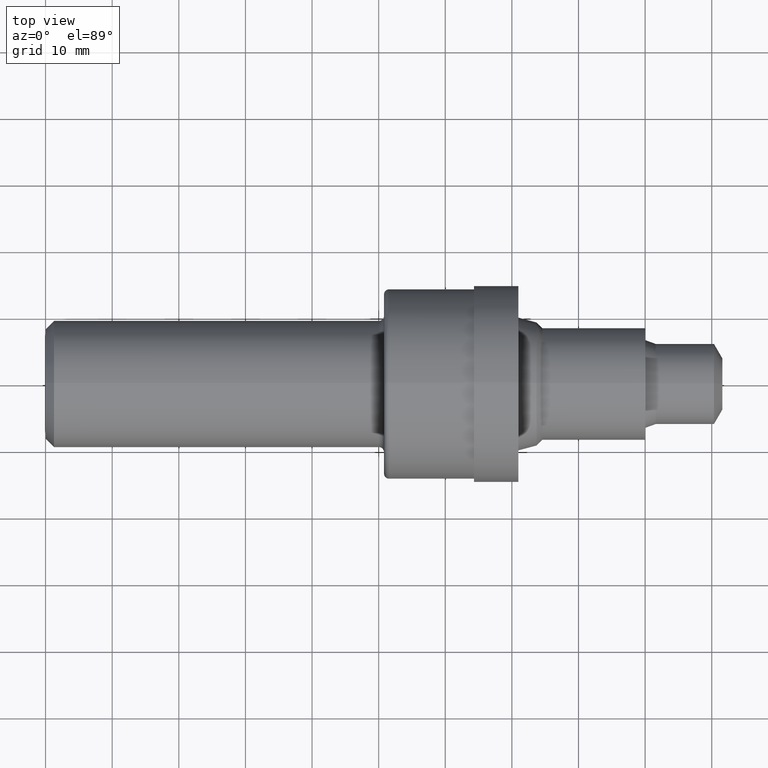
[diagram: clean part render]
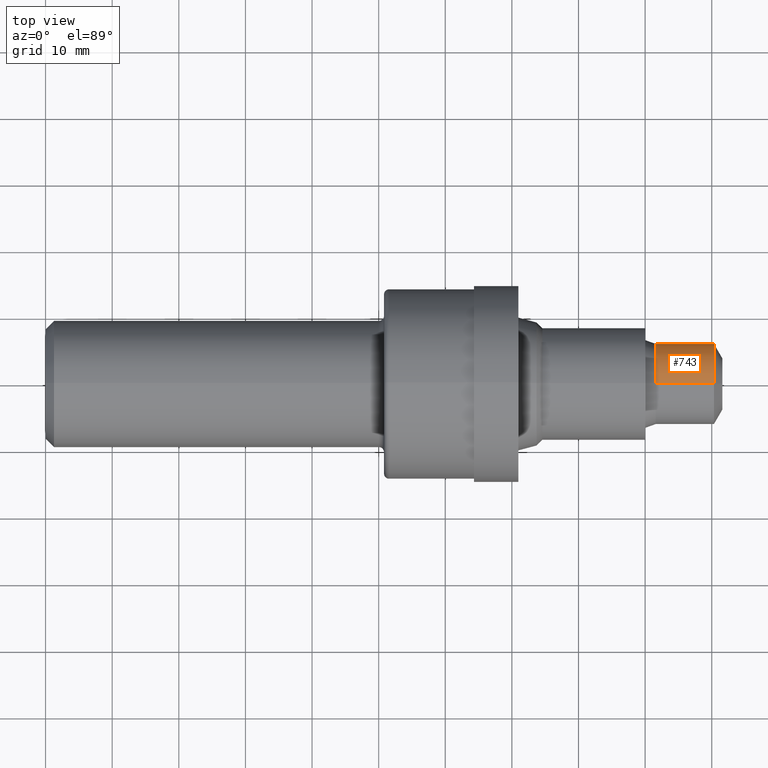
[diagram: same view with one face highlighted and labeled with its STEP entity id]
A machine part, top view. The second image highlights one B-rep face of the part: STEP entity #743.
In plain terms, the highlighted cylindrical surface (partial cylindrical patch) has radius 6.0427 mm, axis along (-1, -0, -0).
Its self-contained STEP definition (entity closure, byte-faithful):
#12 = DIRECTION ( 'NONE',  ( -1.000000000000000000, -0.0000000000000000000, -0.0000000000000000000 ) ) ;
#19 = CYLINDRICAL_SURFACE ( 'NONE', #780, 0.2379000000000000004 ) ;
#37 = CIRCLE ( 'NONE', #235, 0.2379000000000000004 ) ;
#84 = ORIENTED_EDGE ( 'NONE', *, *, #194, .F. ) ;
#95 = CARTESIAN_POINT ( 'NONE',  ( 3.606000000000000316, 3.051612579709048924E-17, -0.2379000000000000004 ) ) ;
#103 = EDGE_CURVE ( 'NONE', #506, #411, #793, .T. ) ;
#138 = VECTOR ( 'NONE', #179, 39.37007874015748143 ) ;
#179 = DIRECTION ( 'NONE',  ( -1.000000000000000000, -0.0000000000000000000, -0.0000000000000000000 ) ) ;
#194 = EDGE_CURVE ( 'NONE', #587, #335, #305, .T. ) ;
#195 = FACE_OUTER_BOUND ( 'NONE', #299, .T. ) ;
#235 = AXIS2_PLACEMENT_3D ( 'NONE', #258, #633, #384 ) ;
#258 = CARTESIAN_POINT ( 'NONE',  ( 3.606000000000000316, 0.0000000000000000000, 0.0000000000000000000 ) ) ;
#264 = ORIENTED_EDGE ( 'NONE', *, *, #695, .T. ) ;
#270 = VECTOR ( 'NONE', #12, 39.37007874015748143 ) ;
#281 = ORIENTED_EDGE ( 'NONE', *, *, #799, .F. ) ;
#299 = EDGE_LOOP ( 'NONE', ( #264, #446, #281, #84 ) ) ;
#305 = LINE ( 'NONE', #455, #270 ) ;
#326 = DIRECTION ( 'NONE',  ( 0.0000000000000000000, 0.0000000000000000000, 1.000000000000000000 ) ) ;
#335 = VERTEX_POINT ( 'NONE', #668 ) ;
#384 = DIRECTION ( 'NONE',  ( 0.0000000000000000000, 0.0000000000000000000, 1.000000000000000000 ) ) ;
#411 = VERTEX_POINT ( 'NONE', #95 ) ;
#446 = ORIENTED_EDGE ( 'NONE', *, *, #103, .T. ) ;
#451 = DIRECTION ( 'NONE',  ( 0.0000000000000000000, 0.0000000000000000000, 1.000000000000000000 ) ) ;
#455 = CARTESIAN_POINT ( 'NONE',  ( 0.0000000000000000000, 0.0000000000000000000, 0.2379000000000000004 ) ) ;
#458 = DIRECTION ( 'NONE',  ( -1.000000000000000000, -0.0000000000000000000, -0.0000000000000000000 ) ) ;
#459 = AXIS2_PLACEMENT_3D ( 'NONE', #701, #770, #326 ) ;
#506 = VERTEX_POINT ( 'NONE', #724 ) ;
#587 = VERTEX_POINT ( 'NONE', #797 ) ;
#612 = CARTESIAN_POINT ( 'NONE',  ( 0.0000000000000000000, 2.913434735171553361E-17, -0.2379000000000000004 ) ) ;
#633 = DIRECTION ( 'NONE',  ( -1.000000000000000000, -0.0000000000000000000, -0.0000000000000000000 ) ) ;
#668 = CARTESIAN_POINT ( 'NONE',  ( 3.606000000000000316, 0.0000000000000000000, 0.2379000000000000004 ) ) ;
#695 = EDGE_CURVE ( 'NONE', #587, #506, #707, .T. ) ;
#701 = CARTESIAN_POINT ( 'NONE',  ( 3.950000000000000178, 0.0000000000000000000, 0.0000000000000000000 ) ) ;
#707 = CIRCLE ( 'NONE', #459, 0.2379000000000000004 ) ;
#724 = CARTESIAN_POINT ( 'NONE',  ( 3.950000000000000178, 2.913434735171553361E-17, -0.2379000000000000004 ) ) ;
#743 = ADVANCED_FACE ( 'NONE', ( #195 ), #19, .T. ) ;
#770 = DIRECTION ( 'NONE',  ( -1.000000000000000000, -0.0000000000000000000, -0.0000000000000000000 ) ) ;
#776 = CARTESIAN_POINT ( 'NONE',  ( 0.0000000000000000000, 0.0000000000000000000, 0.0000000000000000000 ) ) ;
#780 = AXIS2_PLACEMENT_3D ( 'NONE', #776, #458, #451 ) ;
#793 = LINE ( 'NONE', #612, #138 ) ;
#797 = CARTESIAN_POINT ( 'NONE',  ( 3.950000000000000178, 0.0000000000000000000, 0.2379000000000000004 ) ) ;
#799 = EDGE_CURVE ( 'NONE', #335, #411, #37, .T. ) ;